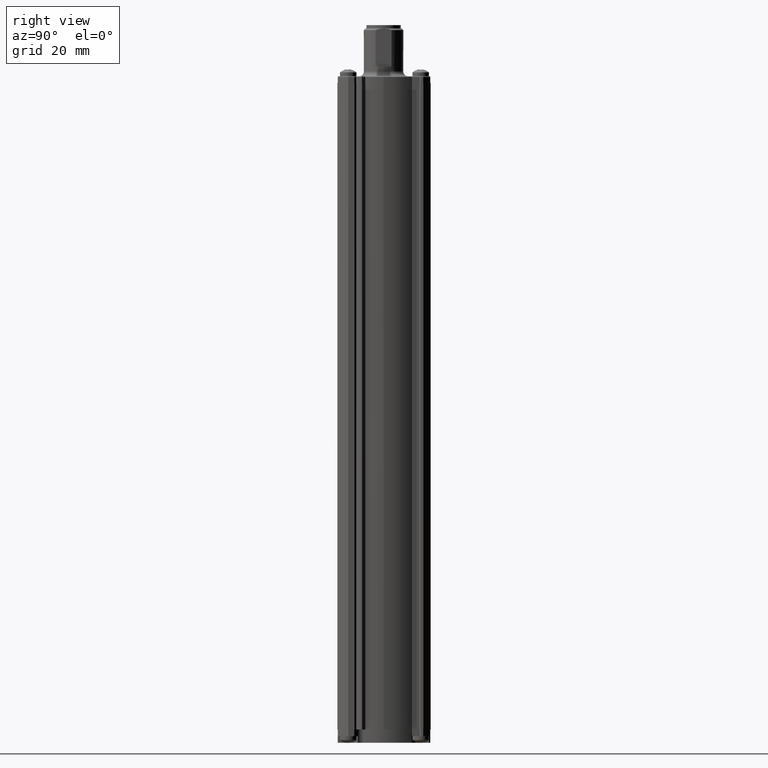
[diagram: clean part render]
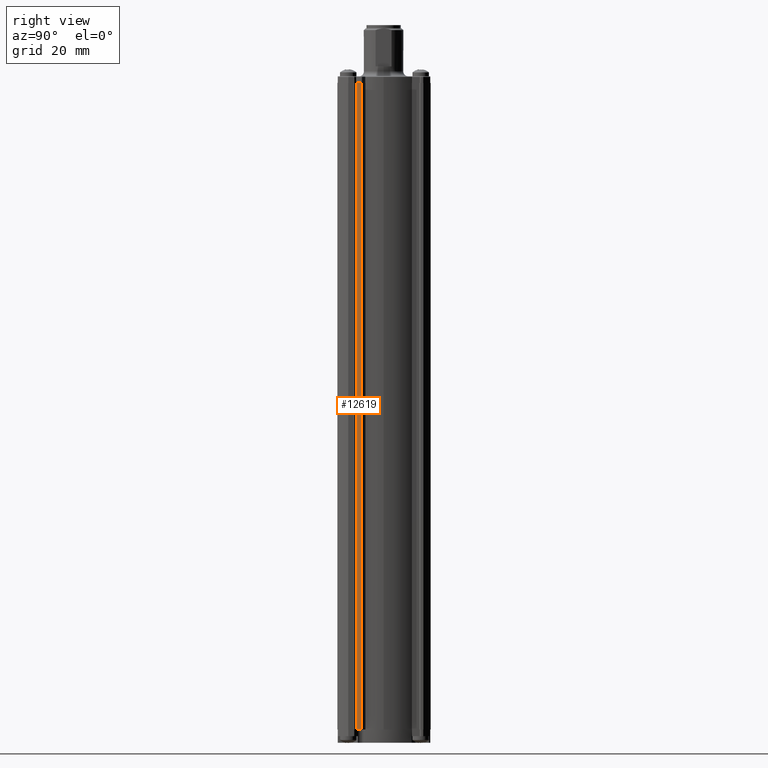
[diagram: same view with one face highlighted and labeled with its STEP entity id]
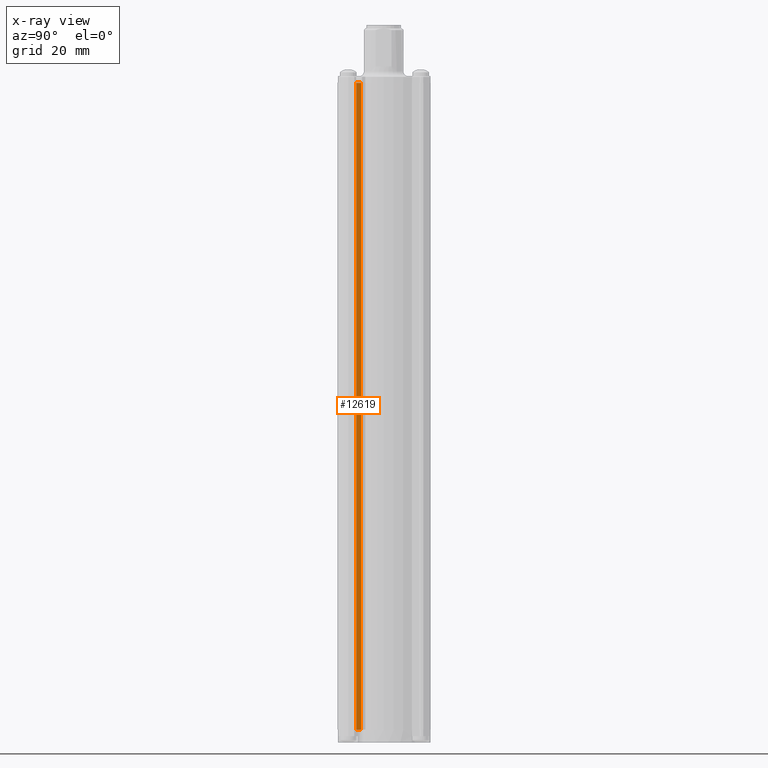
[diagram: x-ray of the same camera — body ghosted, the highlighted face saturated]
A machine part, right view. The second image highlights one B-rep face of the part: STEP entity #12619.
The next image is the same camera in x-ray: the body ghosted, the highlighted face saturated — about 0% of this face is hidden behind the body in this view.
In plain terms, the highlighted cylindrical surface (partial cylindrical patch) has radius 17.25 mm, axis along (-0, 0, 1).
Its self-contained STEP definition (entity closure, byte-faithful):
#57 = EDGE_LOOP ( 'NONE', ( #13544, #9872, #18221, #2857 ) ) ;
#177 = DIRECTION ( 'NONE',  ( -0.000000000000000000, 0.000000000000000000, 1.000000000000000000 ) ) ;
#930 = EDGE_CURVE ( 'NONE', #9906, #14754, #15337, .T. ) ;
#2584 = VECTOR ( 'NONE', #13706, 1000.000000000000000 ) ;
#2857 = ORIENTED_EDGE ( 'NONE', *, *, #14468, .F. ) ;
#2900 = CARTESIAN_POINT ( 'NONE',  ( 0.000000000000000000, -9.999999999999999799E-13, -197.9999999999989484 ) ) ;
#3016 = CARTESIAN_POINT ( 'NONE',  ( 15.82960840458342844, -6.854633305841807633, -197.9999999999989484 ) ) ;
#4102 = DIRECTION ( 'NONE',  ( 0.000000000000000000, 0.000000000000000000, -1.000000000000000000 ) ) ;
#4438 = CARTESIAN_POINT ( 'NONE',  ( 15.82960840458342844, -6.854633305841807633, -1.999999999998947064 ) ) ;
#4933 = CARTESIAN_POINT ( 'NONE',  ( 15.12531301981988285, -8.293817338987178545, -1.999999999998947064 ) ) ;
#6010 = AXIS2_PLACEMENT_3D ( 'NONE', #8979, #4102, #15339 ) ;
#8733 = EDGE_CURVE ( 'NONE', #15943, #8985, #16188, .T. ) ;
#8795 = CARTESIAN_POINT ( 'NONE',  ( 0.000000000000000000, -9.999999999999999799E-13, -197.9999999999989484 ) ) ;
#8979 = CARTESIAN_POINT ( 'NONE',  ( 0.000000000000000000, -9.999999999999999799E-13, -1.999999999998947064 ) ) ;
#8985 = VERTEX_POINT ( 'NONE', #4933 ) ;
#9872 = ORIENTED_EDGE ( 'NONE', *, *, #18455, .T. ) ;
#9906 = VERTEX_POINT ( 'NONE', #10329 ) ;
#10329 = CARTESIAN_POINT ( 'NONE',  ( 15.82960840458342844, -6.854633305841807633, -197.9999999999989484 ) ) ;
#10506 = CARTESIAN_POINT ( 'NONE',  ( 15.12531301981988285, -8.293817338987178545, -197.9999999999989484 ) ) ;
#11029 = VECTOR ( 'NONE', #15916, 1000.000000000000000 ) ;
#11337 = DIRECTION ( 'NONE',  ( 0.000000000000000000, 0.000000000000000000, -1.000000000000000000 ) ) ;
#12619 = ADVANCED_FACE ( 'NONE', ( #12894 ), #17032, .T. ) ;
#12894 = FACE_OUTER_BOUND ( 'NONE', #57, .T. ) ;
#13544 = ORIENTED_EDGE ( 'NONE', *, *, #930, .F. ) ;
#13706 = DIRECTION ( 'NONE',  ( -0.000000000000000000, 0.000000000000000000, 1.000000000000000000 ) ) ;
#14468 = EDGE_CURVE ( 'NONE', #14754, #8985, #16807, .T. ) ;
#14754 = VERTEX_POINT ( 'NONE', #10506 ) ;
#15337 = CIRCLE ( 'NONE', #16843, 17.25000000000000000 ) ;
#15339 = DIRECTION ( 'NONE',  ( -1.000000000000000000, -3.999999999999996367E-15, 0.000000000000000000 ) ) ;
#15916 = DIRECTION ( 'NONE',  ( -0.000000000000000000, 0.000000000000000000, 1.000000000000000000 ) ) ;
#15943 = VERTEX_POINT ( 'NONE', #4438 ) ;
#16014 = LINE ( 'NONE', #3016, #11029 ) ;
#16188 = CIRCLE ( 'NONE', #6010, 17.25000000000000000 ) ;
#16807 = LINE ( 'NONE', #16899, #2584 ) ;
#16843 = AXIS2_PLACEMENT_3D ( 'NONE', #8795, #11337, #17428 ) ;
#16864 = AXIS2_PLACEMENT_3D ( 'NONE', #2900, #177, #18421 ) ;
#16899 = CARTESIAN_POINT ( 'NONE',  ( 15.12531301981988285, -8.293817338987178545, -197.9999999999989484 ) ) ;
#17032 = CYLINDRICAL_SURFACE ( 'NONE', #16864, 17.25000000000000000 ) ;
#17428 = DIRECTION ( 'NONE',  ( -1.000000000000000000, -3.999999999999996367E-15, 0.000000000000000000 ) ) ;
#18221 = ORIENTED_EDGE ( 'NONE', *, *, #8733, .T. ) ;
#18421 = DIRECTION ( 'NONE',  ( 1.000000000000000000, 3.999999999999996367E-15, 0.000000000000000000 ) ) ;
#18455 = EDGE_CURVE ( 'NONE', #9906, #15943, #16014, .T. ) ;